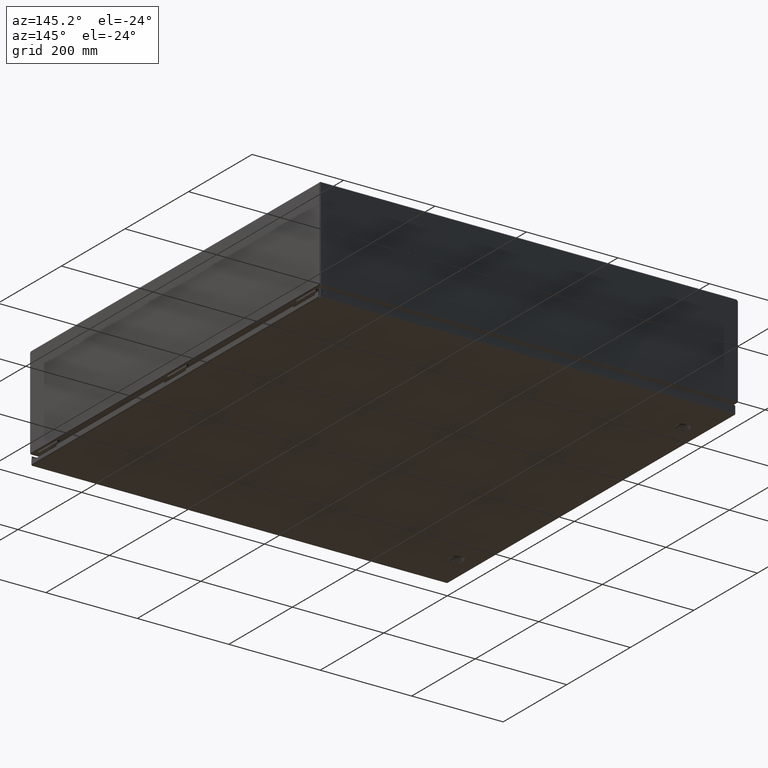
[diagram: clean part render]
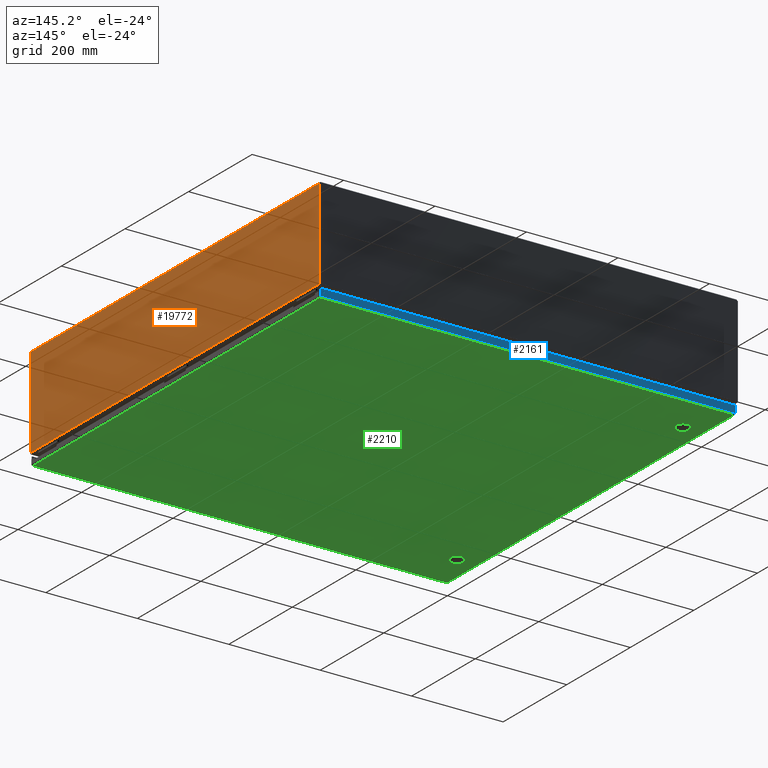
[diagram: same view with three faces highlighted in distinct colors, each labeled with its STEP entity id]
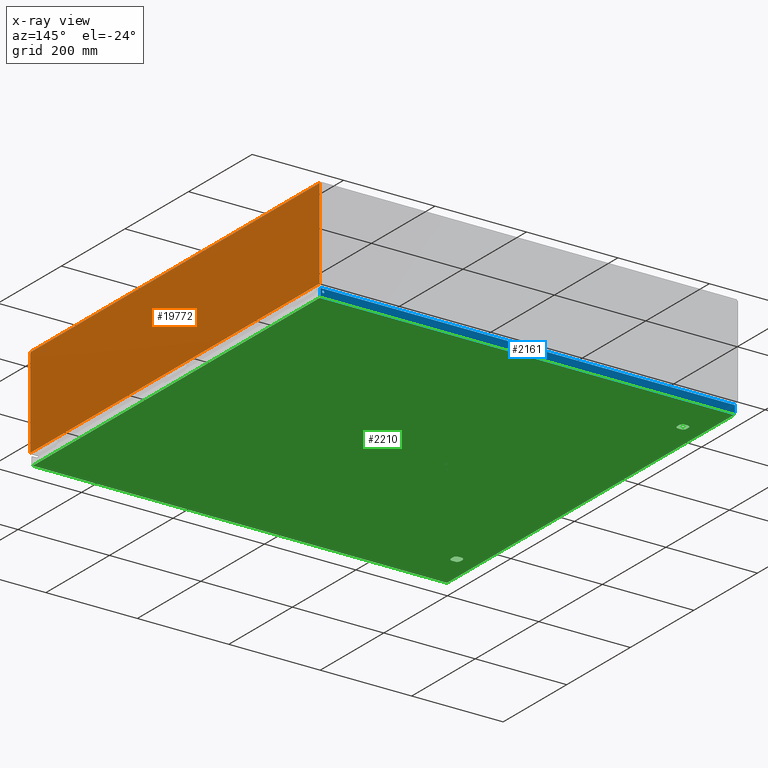
[diagram: x-ray of the same camera — body ghosted, the three highlighted faces saturated]
A machine part, auxiliary view with three faces highlighted in distinct colors.
The next image is the same camera in x-ray (body ghosted, the three faces saturated) — at least one of them is partly hidden behind the body in this view.
Their STEP definitions:

[orange] entity #19772 — the highlighted planar face has unit normal (-1, -0, -0).
#18342=CARTESIAN_POINT('',(1.282876E-014,0.085048543456050,7.894750000000001));
#18343=VERTEX_POINT('',#18342);
#18375=CARTESIAN_POINT('',(1.693746E-015,35.914951456543534,7.894750000000006));
#18376=VERTEX_POINT('',#18375);
#18390=CARTESIAN_POINT('',(8.298242E-015,0.085048543456049,7.894750000000000));
#18391=DIRECTION('',(0.0,1.0,0.0));
#18392=VECTOR('',#18391,35.829902913087487);
#18393=LINE('',#18390,#18392);
#18394=EDGE_CURVE('',#18343,#18376,#18393,.T.);
#18719=CARTESIAN_POINT('',(-2.731848E-015,35.919999999999995,7.894750000000006));
#18720=VERTEX_POINT('',#18719);
#18727=CARTESIAN_POINT('',(-2.671502E-015,35.914951456543534,7.894750000000006));
#18728=DIRECTION('',(0.0,1.0,0.0));
#18729=VECTOR('',#18728,0.005048543456468);
#18730=LINE('',#18727,#18729);
#18731=EDGE_CURVE('',#18376,#18720,#18730,.T.);
#18897=CARTESIAN_POINT('',(8.239254E-015,0.080000000000007,7.894750000000001));
#18898=VERTEX_POINT('',#18897);
#18899=CARTESIAN_POINT('',(8.299788E-015,0.080000000000005,7.894750000000000));
#18900=DIRECTION('',(0.0,1.0,0.0));
#18901=VECTOR('',#18900,0.005048543456043);
#18902=LINE('',#18899,#18901);
#18903=EDGE_CURVE('',#18898,#18343,#18902,.T.);
#18928=CARTESIAN_POINT('',(6.565620E-015,0.080000000000001,0.129782883345321));
#18929=VERTEX_POINT('',#18928);
#18930=CARTESIAN_POINT('',(8.749896E-015,0.080000000000000,7.894750000000001));
#18931=DIRECTION('',(0.0,0.0,-1.0));
#18932=VECTOR('',#18931,7.764967116654680);
#18933=LINE('',#18930,#18932);
#18934=EDGE_CURVE('',#18898,#18929,#18933,.T.);
#19660=CARTESIAN_POINT('',(-3.918945E-015,35.882766839324368,0.105250000000000));
#19661=VERTEX_POINT('',#19660);
#19668=CARTESIAN_POINT('',(-4.407216E-015,35.919999999999995,0.129782883345320));
#19669=VERTEX_POINT('',#19668);
#19670=CARTESIAN_POINT('',(-3.942771E-015,35.937891921115430,0.062108078884584));
#19671=DIRECTION('',(1.0,0.0,0.0));
#19672=DIRECTION('',(0.0,0.0,-1.0));
#19673=AXIS2_PLACEMENT_3D('',#19670,#19671,#19672);
#19674=CIRCLE('',#19673,0.070000000000000);
#19675=EDGE_CURVE('',#19669,#19661,#19674,.T.);
#19739=CARTESIAN_POINT('',(2.183918E-015,18.0,4.009483078884583));
#19740=DIRECTION('',(1.0,0.0,0.0));
#19741=DIRECTION('',(0.0,0.0,-1.0));
#19742=AXIS2_PLACEMENT_3D('',#19739,#19740,#19741);
#19743=PLANE('',#19742);
#19744=ORIENTED_EDGE('',*,*,#18903,.T.);
#19745=ORIENTED_EDGE('',*,*,#18394,.T.);
#19746=ORIENTED_EDGE('',*,*,#18731,.T.);
#19747=CARTESIAN_POINT('',(-3.948265E-015,35.919999999999995,0.129782883345320));
#19748=DIRECTION('',(0.0,0.0,1.0));
#19749=VECTOR('',#19748,7.764967116654686);
#19750=LINE('',#19747,#19749);
#19751=EDGE_CURVE('',#19669,#18720,#19750,.T.);
#19752=ORIENTED_EDGE('',*,*,#19751,.F.);
#19753=ORIENTED_EDGE('',*,*,#19675,.T.);
#19754=CARTESIAN_POINT('',(7.031091E-015,0.117233160675642,0.105250000000000));
#19755=VERTEX_POINT('',#19754);
#19756=CARTESIAN_POINT('',(-3.918956E-015,35.882766839324368,0.105250000000000));
#19757=DIRECTION('',(0.0,-1.0,0.0));
#19758=VECTOR('',#19757,35.765533678648723);
#19759=LINE('',#19756,#19758);
#19760=EDGE_CURVE('',#19661,#19755,#19759,.T.);
#19761=ORIENTED_EDGE('',*,*,#19760,.T.);
#19762=CARTESIAN_POINT('',(7.041020E-015,0.062108078884585,0.062108078884579));
#19763=DIRECTION('',(1.0,0.0,0.0));
#19764=DIRECTION('',(0.0,0.0,-1.0));
#19765=AXIS2_PLACEMENT_3D('',#19762,#19763,#19764);
#19766=CIRCLE('',#19765,0.070000000000000);
#19767=EDGE_CURVE('',#19755,#18929,#19766,.T.);
#19768=ORIENTED_EDGE('',*,*,#19767,.T.);
#19769=ORIENTED_EDGE('',*,*,#18934,.F.);
#19770=EDGE_LOOP('',(#19744,#19745,#19746,#19752,#19753,#19761,#19768,#19769));
#19771=FACE_OUTER_BOUND('',#19770,.T.);
#19772=ADVANCED_FACE('',(#19771),#19743,.F.);

[blue] entity #2161 — the highlighted planar face has unit normal (0, -1, 0).
#1151=CARTESIAN_POINT('',(35.633951456543954,35.750000000000000,0.480000000000013));
#1152=VERTEX_POINT('',#1151);
#1153=CARTESIAN_POINT('',(35.539951456543953,35.749999999999993,0.480000000000013));
#1154=DIRECTION('',(0.0,-1.0,0.0));
#1155=DIRECTION('',(-1.0,0.0,0.0));
#1156=AXIS2_PLACEMENT_3D('',#1153,#1154,#1155);
#1157=CIRCLE('',#1156,0.094000000000000);
#1158=EDGE_CURVE('',#1152,#1152,#1157,.T.);
#1916=CARTESIAN_POINT('',(35.789951456543967,35.750000000000014,0.105250000000007));
#1917=VERTEX_POINT('',#1916);
#1918=CARTESIAN_POINT('',(0.085048543456039,35.750000000000000,0.105249999999996));
#1919=VERTEX_POINT('',#1918);
#1920=CARTESIAN_POINT('',(35.789951456543974,35.750000000000014,0.105250000000001));
#1921=DIRECTION('',(-1.0,0.0,0.0));
#1922=VECTOR('',#1921,35.704902913087935);
#1923=LINE('',#1920,#1922);
#1924=EDGE_CURVE('',#1917,#1919,#1923,.T.);
#2003=CARTESIAN_POINT('',(0.085048543456033,35.749999999999964,0.729999999999997));
#2004=VERTEX_POINT('',#2003);
#2005=CARTESIAN_POINT('',(0.085048543456033,35.749999999999964,0.729999999999996));
#2006=DIRECTION('',(0.0,0.0,-1.0));
#2007=VECTOR('',#2006,0.624750000000000);
#2008=LINE('',#2005,#2007);
#2009=EDGE_CURVE('',#2004,#1919,#2008,.T.);
#2111=CARTESIAN_POINT('',(35.789951456543967,35.749999999999986,0.730000000000014));
#2112=VERTEX_POINT('',#2111);
#2113=CARTESIAN_POINT('',(35.789951456543967,35.750000000000014,0.105250000000012));
#2114=DIRECTION('',(0.0,0.0,1.0));
#2115=VECTOR('',#2114,0.624750000000000);
#2116=LINE('',#2113,#2115);
#2117=EDGE_CURVE('',#1917,#2112,#2116,.T.);
#2135=CARTESIAN_POINT('',(35.789951456543967,35.749999999999986,0.730000000000014));
#2136=DIRECTION('',(-1.0,0.0,0.0));
#2137=VECTOR('',#2136,35.704902913087928);
#2138=LINE('',#2135,#2137);
#2139=EDGE_CURVE('',#2112,#2004,#2138,.T.);
#2147=CARTESIAN_POINT('',(17.937500000000004,35.749999999999993,0.366531193420756));
#2148=DIRECTION('',(0.0,-1.0,0.0));
#2149=DIRECTION('',(1.0,0.0,0.0));
#2150=AXIS2_PLACEMENT_3D('',#2147,#2148,#2149);
#2151=PLANE('',#2150);
#2152=ORIENTED_EDGE('',*,*,#1924,.T.);
#2153=ORIENTED_EDGE('',*,*,#2009,.F.);
#2154=ORIENTED_EDGE('',*,*,#2139,.F.);
#2155=ORIENTED_EDGE('',*,*,#2117,.F.);
#2156=EDGE_LOOP('',(#2152,#2153,#2154,#2155));
#2157=FACE_OUTER_BOUND('',#2156,.T.);
#2158=ORIENTED_EDGE('',*,*,#1158,.T.);
#2159=EDGE_LOOP('',(#2158));
#2160=FACE_BOUND('',#2159,.T.);
#2161=ADVANCED_FACE('',(#2157,#2160),#2151,.F.);

[green] entity #2210 — the highlighted planar face has unit normal (0, 0, 1).
#135=CARTESIAN_POINT('',(2.087624081420725,4.274999999999991,0.0));
#136=VERTEX_POINT('',#135);
#143=CARTESIAN_POINT('',(2.274999999999991,4.087624081420719,0.0));
#144=VERTEX_POINT('',#143);
#145=CARTESIAN_POINT('',(1.874999999999996,3.875000000000001,0.0));
#146=DIRECTION('',(0.0,0.0,1.0));
#147=DIRECTION('',(-0.469368833158343,-0.883002207505494,0.0));
#148=AXIS2_PLACEMENT_3D('',#145,#146,#147);
#149=CIRCLE('',#148,0.453000000000000);
#150=EDGE_CURVE('',#144,#136,#149,.T.);
#175=CARTESIAN_POINT('',(2.274999999999991,3.662375918579284,0.0));
#176=VERTEX_POINT('',#175);
#177=CARTESIAN_POINT('',(2.274999999999992,3.662375918579285,0.0));
#178=DIRECTION('',(0.0,1.0,0.0));
#179=VECTOR('',#178,0.425248162841434);
#180=LINE('',#177,#179);
#181=EDGE_CURVE('',#176,#144,#180,.T.);
#207=CARTESIAN_POINT('',(2.087624081420680,3.474999999999989,0.0));
#208=VERTEX_POINT('',#207);
#209=CARTESIAN_POINT('',(1.874999999999996,3.875000000000001,0.0));
#210=DIRECTION('',(0.0,0.0,1.0));
#211=DIRECTION('',(-0.883002207505508,0.469368833158317,0.0));
#212=AXIS2_PLACEMENT_3D('',#209,#210,#211);
#213=CIRCLE('',#212,0.453000000000000);
#214=EDGE_CURVE('',#208,#176,#213,.T.);
#239=CARTESIAN_POINT('',(1.662375918579311,3.474999999999989,0.0));
#240=VERTEX_POINT('',#239);
#241=CARTESIAN_POINT('',(1.662375918579309,3.474999999999987,0.0));
#242=DIRECTION('',(1.0,0.0,0.0));
#243=VECTOR('',#242,0.425248162841370);
#244=LINE('',#241,#243);
#245=EDGE_CURVE('',#240,#208,#244,.T.);
#271=CARTESIAN_POINT('',(1.475000000000001,3.662375918579284,0.0));
#272=VERTEX_POINT('',#271);
#273=CARTESIAN_POINT('',(1.874999999999996,3.875000000000001,0.0));
#274=DIRECTION('',(0.0,0.0,1.0));
#275=DIRECTION('',(0.469368833158244,0.883002207505547,0.0));
#276=AXIS2_PLACEMENT_3D('',#273,#274,#275);
#277=CIRCLE('',#276,0.453000000000000);
#278=EDGE_CURVE('',#272,#240,#277,.T.);
#303=CARTESIAN_POINT('',(1.475000000000001,4.087624081420719,0.0));
#304=VERTEX_POINT('',#303);
#305=CARTESIAN_POINT('',(1.475000000000002,4.087624081420719,0.0));
#306=DIRECTION('',(0.0,-1.0,0.0));
#307=VECTOR('',#306,0.425248162841435);
#308=LINE('',#305,#307);
#309=EDGE_CURVE('',#304,#272,#308,.T.);
#335=CARTESIAN_POINT('',(1.662375918579266,4.274999999999991,0.0));
#336=VERTEX_POINT('',#335);
#337=CARTESIAN_POINT('',(1.874999999999996,3.875000000000001,0.0));
#338=DIRECTION('',(0.0,0.0,1.0));
#339=DIRECTION('',(0.883002207505508,-0.469368833158317,0.0));
#340=AXIS2_PLACEMENT_3D('',#337,#338,#339);
#341=CIRCLE('',#340,0.453000000000000);
#342=EDGE_CURVE('',#336,#304,#341,.T.);
#365=CARTESIAN_POINT('',(2.087624081420724,4.274999999999992,0.0));
#366=DIRECTION('',(-1.0,0.0,0.0));
#367=VECTOR('',#366,0.425248162841458);
#368=LINE('',#365,#367);
#369=EDGE_CURVE('',#136,#336,#368,.T.);
#391=CARTESIAN_POINT('',(2.087624081420700,32.274999999999991,0.0));
#392=VERTEX_POINT('',#391);
#399=CARTESIAN_POINT('',(2.274999999999992,32.087624081420707,0.0));
#400=VERTEX_POINT('',#399);
#401=CARTESIAN_POINT('',(1.874999999999996,31.874999999999993,0.0));
#402=DIRECTION('',(0.0,0.0,1.0));
#403=DIRECTION('',(-0.469368833158288,-0.883002207505523,0.0));
#404=AXIS2_PLACEMENT_3D('',#401,#402,#403);
#405=CIRCLE('',#404,0.453000000000000);
#406=EDGE_CURVE('',#400,#392,#405,.T.);
#431=CARTESIAN_POINT('',(2.274999999999992,31.662375918579279,0.0));
#432=VERTEX_POINT('',#431);
#433=CARTESIAN_POINT('',(2.274999999999992,31.662375918579276,0.0));
#434=DIRECTION('',(0.0,1.0,0.0));
#435=VECTOR('',#434,0.425248162841431);
#436=LINE('',#433,#435);
#437=EDGE_CURVE('',#432,#400,#436,.T.);
#463=CARTESIAN_POINT('',(2.087624081420711,31.474999999999998,0.0));
#464=VERTEX_POINT('',#463);
#465=CARTESIAN_POINT('',(1.874999999999996,31.874999999999993,0.0));
#466=DIRECTION('',(0.0,0.0,1.0));
#467=DIRECTION('',(-0.883002207505511,0.469368833158312,0.0));
#468=AXIS2_PLACEMENT_3D('',#465,#466,#467);
#469=CIRCLE('',#468,0.453000000000000);
#470=EDGE_CURVE('',#464,#432,#469,.T.);
#495=CARTESIAN_POINT('',(1.662375918579281,31.474999999999998,0.0));
#496=VERTEX_POINT('',#495);
#497=CARTESIAN_POINT('',(1.662375918579281,31.474999999999998,0.0));
#498=DIRECTION('',(1.0,0.0,0.0));
#499=VECTOR('',#498,0.425248162841430);
#500=LINE('',#497,#499);
#501=EDGE_CURVE('',#496,#464,#500,.T.);
#527=CARTESIAN_POINT('',(1.474999999999992,31.662375918579283,0.0));
#528=VERTEX_POINT('',#527);
#529=CARTESIAN_POINT('',(1.874999999999996,31.874999999999993,0.0));
#530=DIRECTION('',(0.0,0.0,1.0));
#531=DIRECTION('',(0.469368833158311,0.883002207505511,0.0));
#532=AXIS2_PLACEMENT_3D('',#529,#530,#531);
#533=CIRCLE('',#532,0.453000000000000);
#534=EDGE_CURVE('',#528,#496,#533,.T.);
#559=CARTESIAN_POINT('',(1.474999999999992,32.087624081420699,0.0));
#560=VERTEX_POINT('',#559);
#561=CARTESIAN_POINT('',(1.474999999999993,32.087624081420707,0.0));
#562=DIRECTION('',(0.0,-1.0,0.0));
#563=VECTOR('',#562,0.425248162841420);
#564=LINE('',#561,#563);
#565=EDGE_CURVE('',#560,#528,#564,.T.);
#591=CARTESIAN_POINT('',(1.662375918579291,32.274999999999991,0.0));
#592=VERTEX_POINT('',#591);
#593=CARTESIAN_POINT('',(1.874999999999996,31.874999999999993,0.0));
#594=DIRECTION('',(0.0,0.0,1.0));
#595=DIRECTION('',(0.883002207505519,-0.469368833158296,0.0));
#596=AXIS2_PLACEMENT_3D('',#593,#594,#595);
#597=CIRCLE('',#596,0.453000000000000);
#598=EDGE_CURVE('',#592,#560,#597,.T.);
#621=CARTESIAN_POINT('',(2.087624081420699,32.274999999999991,0.0));
#622=DIRECTION('',(-1.0,0.0,0.0));
#623=VECTOR('',#622,0.425248162841408);
#624=LINE('',#621,#623);
#625=EDGE_CURVE('',#392,#592,#624,.T.);
#1208=CARTESIAN_POINT('',(35.769750000000002,0.105250000000001,-1.092739E-017));
#1209=VERTEX_POINT('',#1208);
#1220=CARTESIAN_POINT('',(35.769749999999995,35.644750000000002,-2.185478E-017));
#1221=VERTEX_POINT('',#1220);
#1222=CARTESIAN_POINT('',(35.769750000000002,35.644750000000002,0.0));
#1223=DIRECTION('',(0.0,-1.0,0.0));
#1224=VECTOR('',#1223,35.539500000000004);
#1225=LINE('',#1222,#1224);
#1226=EDGE_CURVE('',#1221,#1209,#1225,.T.);
#1378=CARTESIAN_POINT('',(0.105250000000007,0.105250000000007,-3.278218E-017));
#1379=VERTEX_POINT('',#1378);
#1390=CARTESIAN_POINT('',(35.769750000000002,0.105250000000001,0.0));
#1391=DIRECTION('',(-1.0,0.0,0.0));
#1392=VECTOR('',#1391,35.664499999999990);
#1393=LINE('',#1390,#1392);
#1394=EDGE_CURVE('',#1209,#1379,#1393,.T.);
#1655=CARTESIAN_POINT('',(0.105249999999993,35.644750000000002,-2.185478E-017));
#1656=VERTEX_POINT('',#1655);
#1667=CARTESIAN_POINT('',(0.105250000000007,0.105250000000007,0.0));
#1668=DIRECTION('',(0.0,1.0,0.0));
#1669=VECTOR('',#1668,35.539499999999997);
#1670=LINE('',#1667,#1669);
#1671=EDGE_CURVE('',#1379,#1656,#1670,.T.);
#1936=CARTESIAN_POINT('',(0.105249999999993,35.644750000000002,0.0));
#1937=DIRECTION('',(1.0,0.0,0.0));
#1938=VECTOR('',#1937,35.664500000000004);
#1939=LINE('',#1936,#1938);
#1940=EDGE_CURVE('',#1656,#1221,#1939,.T.);
#2179=CARTESIAN_POINT('',(17.937499999999996,17.875000000000007,0.0));
#2180=DIRECTION('',(0.0,0.0,1.0));
#2181=DIRECTION('',(1.0,0.0,0.0));
#2182=AXIS2_PLACEMENT_3D('',#2179,#2180,#2181);
#2183=PLANE('',#2182);
#2184=ORIENTED_EDGE('',*,*,#1226,.T.);
#2185=ORIENTED_EDGE('',*,*,#1394,.T.);
#2186=ORIENTED_EDGE('',*,*,#1671,.T.);
#2187=ORIENTED_EDGE('',*,*,#1940,.T.);
#2188=EDGE_LOOP('',(#2184,#2185,#2186,#2187));
#2189=FACE_OUTER_BOUND('',#2188,.T.);
#2190=ORIENTED_EDGE('',*,*,#150,.T.);
#2191=ORIENTED_EDGE('',*,*,#369,.T.);
#2192=ORIENTED_EDGE('',*,*,#342,.T.);
#2193=ORIENTED_EDGE('',*,*,#309,.T.);
#2194=ORIENTED_EDGE('',*,*,#278,.T.);
#2195=ORIENTED_EDGE('',*,*,#245,.T.);
#2196=ORIENTED_EDGE('',*,*,#214,.T.);
#2197=ORIENTED_EDGE('',*,*,#181,.T.);
#2198=EDGE_LOOP('',(#2190,#2191,#2192,#2193,#2194,#2195,#2196,#2197));
#2199=FACE_BOUND('',#2198,.T.);
#2200=ORIENTED_EDGE('',*,*,#406,.T.);
#2201=ORIENTED_EDGE('',*,*,#625,.T.);
#2202=ORIENTED_EDGE('',*,*,#598,.T.);
#2203=ORIENTED_EDGE('',*,*,#565,.T.);
#2204=ORIENTED_EDGE('',*,*,#534,.T.);
#2205=ORIENTED_EDGE('',*,*,#501,.T.);
#2206=ORIENTED_EDGE('',*,*,#470,.T.);
#2207=ORIENTED_EDGE('',*,*,#437,.T.);
#2208=EDGE_LOOP('',(#2200,#2201,#2202,#2203,#2204,#2205,#2206,#2207));
#2209=FACE_BOUND('',#2208,.T.);
#2210=ADVANCED_FACE('',(#2189,#2199,#2209),#2183,.F.);